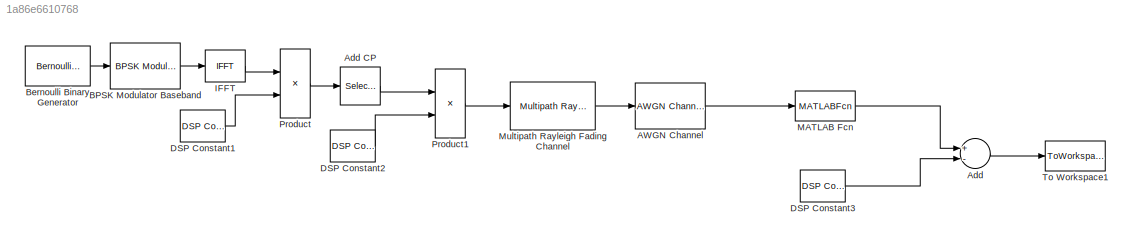
MODEL slx_1a86e6610768
KIND model
CONFIG AbsTol = auto
CONFIG FixedStep = auto
CONFIG MaxStep = auto
CONFIG MinStep = auto
CONFIG RelTol = 1e-3
CONFIG SampleTimeConstraint = Unconstrained
CONFIG Solver = VariableStepAuto
CONFIG SolverMode = Auto
CONFIG SolverName = VariableStepAuto
CONFIG StartTime = 0.0
CONFIG StopTime = 10.0
BLOCK [Reference] AWGN Channel  REF=commchan3/AWGN
Channel
  Ports = [1, 1]
  SourceBlock = commchan3/AWGN\nChannel
  SourceType = AWGN Channel
  UserDataPersistent = on
BLOCK [Sum] Add
  InputSameDT = off
  Inputs = +-
  OutDataTypeStr = Inherit: Inherit via internal rule
  Ports = [2, 1]
  SaturateOnIntegerOverflow = off
BLOCK [Selector] Add CP
  IndexOptions = Index vector (dialog)
  Indices = [100:128 1:128]
  InputPortWidth = 128
  OutputSizes = 1
  Ports = [1, 1]
BLOCK [Reference] BPSK Modulator Baseband  REF=commdigbbndpm3/BPSK
Modulator
Baseband
  Ports = [1, 1]
  SourceBlock = commdigbbndpm3/BPSK\nModulator\nBaseband
  SourceType = BPSK Modulator Baseband
BLOCK [Reference] Bernoulli Binary Generator  REF=commrandsrc2/Bernoulli Binary
Generator
  Ports = [0, 1]
  SourceBlock = commrandsrc2/Bernoulli Binary\nGenerator
  SourceType = Bernoulli Binary Generator
BLOCK [Reference] DSP Constant1  REF=dspobslib/DSP
Constant
  Ports = [0, 1]
  SourceBlock = dspobslib/DSP\nConstant
  SourceType = DSP Constant
BLOCK [Reference] DSP Constant2  REF=dspobslib/DSP
Constant
  Ports = [0, 1]
  SourceBlock = dspobslib/DSP\nConstant
  SourceType = DSP Constant
BLOCK [Reference] DSP Constant3  REF=dspobslib/DSP
Constant
  Ports = [0, 1]
  SourceBlock = dspobslib/DSP\nConstant
  SourceType = DSP Constant
BLOCK [Reference] IFFT  REF=dspxfrm3/IFFT
  Ports = [1, 1]
  SourceBlock = dspxfrm3/IFFT
  SourceType = IFFT
BLOCK [MATLABFcn] MATLAB Fcn
  MATLABFcn = fresyn
  Output1D = off
  Ports = [1, 1]
BLOCK [Reference] Multipath Rayleigh Fading Channel  REF=commchan3/Multipath Rayleigh
Fading Channel
  Ports = [1, 1]
  SourceBlock = commchan3/Multipath Rayleigh\nFading Channel
  SourceType = Multipath Rayleigh Fading Channel
BLOCK [Product] Product
  InputSameDT = off
  OutDataTypeStr = Inherit: Inherit via internal rule
  Ports = [2, 1]
  SaturateOnIntegerOverflow = off
BLOCK [Product] Product1
  InputSameDT = off
  OutDataTypeStr = Inherit: Inherit via internal rule
  Ports = [2, 1]
  SaturateOnIntegerOverflow = off
BLOCK [ToWorkspace] To Workspace1
  MaxDataPoints = inf
  Ports = [1]
  SampleTime = -1
  Save2DSignal = 2-D array (concatenate along first dimension)
  VariableName = fre
LINE AWGN Channel:1 -> MATLAB Fcn:1
LINE Add CP:1 -> Product1:1
LINE Add:1 -> To Workspace1:1
LINE BPSK Modulator Baseband:1 -> IFFT:1
LINE Bernoulli Binary Generator:1 -> BPSK Modulator Baseband:1
LINE DSP Constant1:1 -> Product:2
LINE DSP Constant2:1 -> Product1:2
LINE DSP Constant3:1 -> Add:2
LINE IFFT:1 -> Product:1
LINE MATLAB Fcn:1 -> Add:1
LINE Multipath Rayleigh Fading Channel:1 -> AWGN Channel:1
LINE Product1:1 -> Multipath Rayleigh Fading Channel:1
LINE Product:1 -> Add CP:1
